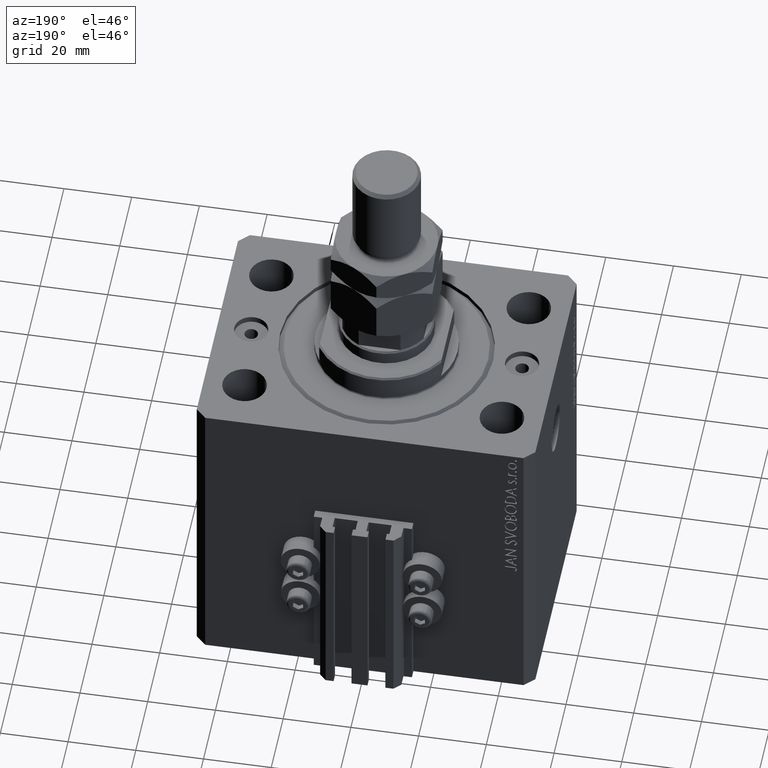
[diagram: clean part render]
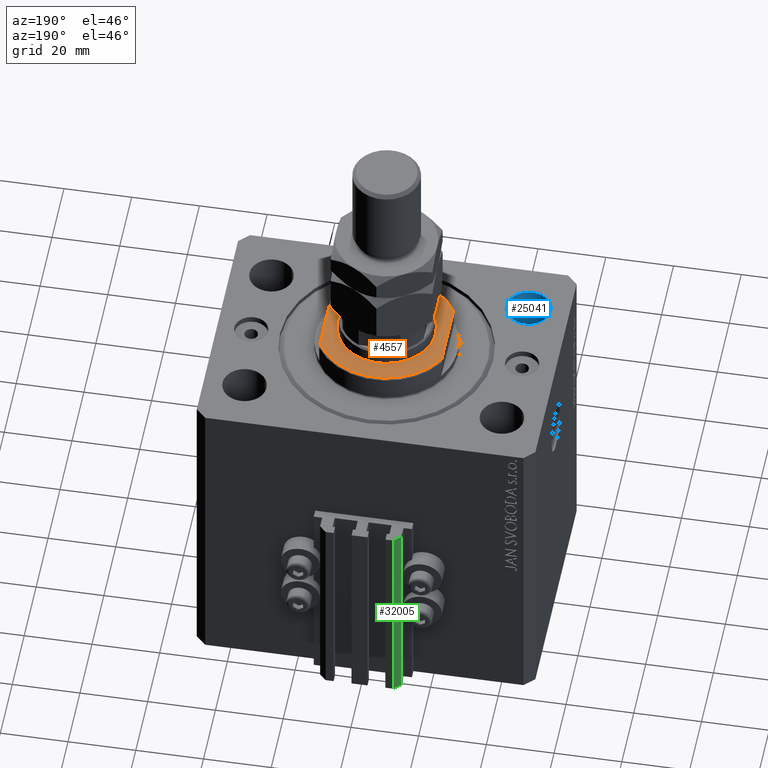
[diagram: same view with three faces highlighted in distinct colors, each labeled with its STEP entity id]
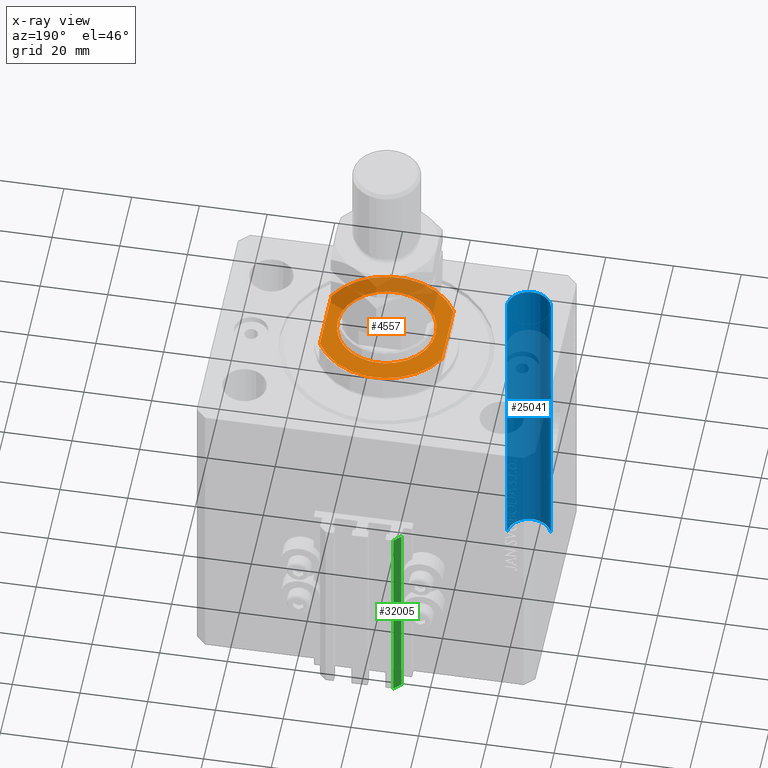
[diagram: x-ray of the same camera — body ghosted, the three highlighted faces saturated]
A machine part, auxiliary view with three faces highlighted in distinct colors.
The next image is the same camera in x-ray (body ghosted, the three faces saturated) — at least one of them is partly hidden behind the body in this view.
Their STEP definitions:

[orange] entity #4557 — the highlighted planar face has unit normal (0, 0, 1).
#2013 = VERTEX_POINT ( 'NONE', #10665 ) ;
#2304 = VERTEX_POINT ( 'NONE', #42613 ) ;
#2636 = DIRECTION ( 'NONE',  ( 0.000000000000000000, 0.000000000000000000, -1.000000000000000000 ) ) ;
#3178 = CARTESIAN_POINT ( 'NONE',  ( 18.00000000000000000, -41.24318125460256113, -8.000000000000000000 ) ) ;
#4535 = DIRECTION ( 'NONE',  ( -0.000000000000000000, -1.000000000000000000, -0.000000000000000000 ) ) ;
#4557 = ADVANCED_FACE ( 'NONE', ( #43066, #9251 ), #17136, .T. ) ;
#4609 = VECTOR ( 'NONE', #4535, 1000.000000000000000 ) ;
#4925 = AXIS2_PLACEMENT_3D ( 'NONE', #42860, #35920, #39153 ) ;
#5816 = VERTEX_POINT ( 'NONE', #6864 ) ;
#6080 = CARTESIAN_POINT ( 'NONE',  ( 0.000000000000000000, 0.000000000000000000, -8.000000000000000000 ) ) ;
#6798 = DIRECTION ( 'NONE',  ( -0.000000000000000000, -0.000000000000000000, 1.000000000000000000 ) ) ;
#6864 = CARTESIAN_POINT ( 'NONE',  ( -14.49999999999998579, 0.000000000000000000, -8.000000000000000000 ) ) ;
#7089 = EDGE_CURVE ( 'NONE', #2304, #5816, #44326, .T. ) ;
#9251 = FACE_OUTER_BOUND ( 'NONE', #27170, .T. ) ;
#9671 = EDGE_CURVE ( 'NONE', #44053, #15915, #18481, .T. ) ;
#10093 = EDGE_CURVE ( 'NONE', #5816, #2304, #36795, .T. ) ;
#10665 = CARTESIAN_POINT ( 'NONE',  ( -18.00000000000000000, -9.810708435174301911, -8.000000000000000000 ) ) ;
#11145 = AXIS2_PLACEMENT_3D ( 'NONE', #32173, #13657, #48210 ) ;
#11586 = AXIS2_PLACEMENT_3D ( 'NONE', #17693, #6798, #26070 ) ;
#12490 = EDGE_CURVE ( 'NONE', #15915, #2013, #16422, .T. ) ;
#12966 = VECTOR ( 'NONE', #36981, 1000.000000000000000 ) ;
#13657 = DIRECTION ( 'NONE',  ( 0.000000000000000000, 0.000000000000000000, -1.000000000000000000 ) ) ;
#13800 = EDGE_CURVE ( 'NONE', #19200, #2013, #18862, .T. ) ;
#15601 = AXIS2_PLACEMENT_3D ( 'NONE', #20935, #24617, #17453 ) ;
#15915 = VERTEX_POINT ( 'NONE', #25052 ) ;
#16422 = CIRCLE ( 'NONE', #15601, 20.50000000000000355 ) ;
#17136 = PLANE ( 'NONE',  #11145 ) ;
#17453 = DIRECTION ( 'NONE',  ( -1.000000000000000000, 0.000000000000000000, 0.000000000000000000 ) ) ;
#17693 = CARTESIAN_POINT ( 'NONE',  ( 0.000000000000000000, 0.000000000000000000, -8.000000000000000000 ) ) ;
#18481 = LINE ( 'NONE', #3178, #12966 ) ;
#18862 = LINE ( 'NONE', #33898, #4609 ) ;
#19200 = VERTEX_POINT ( 'NONE', #40841 ) ;
#20935 = CARTESIAN_POINT ( 'NONE',  ( 0.000000000000000000, 0.000000000000000000, -8.000000000000000000 ) ) ;
#24617 = DIRECTION ( 'NONE',  ( 0.000000000000000000, 0.000000000000000000, -1.000000000000000000 ) ) ;
#25052 = CARTESIAN_POINT ( 'NONE',  ( 18.00000000000000000, -9.810708435174301911, -8.000000000000000000 ) ) ;
#25494 = CIRCLE ( 'NONE', #43601, 20.50000000000000355 ) ;
#26070 = DIRECTION ( 'NONE',  ( -1.000000000000000000, 0.000000000000000000, 0.000000000000000000 ) ) ;
#27170 = EDGE_LOOP ( 'NONE', ( #28463, #38615, #35909, #37666 ) ) ;
#28463 = ORIENTED_EDGE ( 'NONE', *, *, #47324, .T. ) ;
#32173 = CARTESIAN_POINT ( 'NONE',  ( 0.000000000000000000, 0.000000000000000000, -8.000000000000000000 ) ) ;
#32486 = DIRECTION ( 'NONE',  ( -1.000000000000000000, 0.000000000000000000, 0.000000000000000000 ) ) ;
#32816 = ORIENTED_EDGE ( 'NONE', *, *, #10093, .T. ) ;
#33898 = CARTESIAN_POINT ( 'NONE',  ( -18.00000000000000000, -41.24318125460256113, -8.000000000000000000 ) ) ;
#34348 = EDGE_LOOP ( 'NONE', ( #32816, #48787 ) ) ;
#35909 = ORIENTED_EDGE ( 'NONE', *, *, #12490, .T. ) ;
#35920 = DIRECTION ( 'NONE',  ( -0.000000000000000000, -0.000000000000000000, 1.000000000000000000 ) ) ;
#36795 = CIRCLE ( 'NONE', #11586, 14.49999999999998579 ) ;
#36981 = DIRECTION ( 'NONE',  ( 0.000000000000000000, -1.000000000000000000, -0.000000000000000000 ) ) ;
#37666 = ORIENTED_EDGE ( 'NONE', *, *, #13800, .F. ) ;
#38615 = ORIENTED_EDGE ( 'NONE', *, *, #9671, .T. ) ;
#39153 = DIRECTION ( 'NONE',  ( -1.000000000000000000, 0.000000000000000000, 0.000000000000000000 ) ) ;
#40841 = CARTESIAN_POINT ( 'NONE',  ( -18.00000000000000000, 9.810708435174301911, -8.000000000000000000 ) ) ;
#42613 = CARTESIAN_POINT ( 'NONE',  ( 14.49999999999998579, 1.775737858763660437E-15, -8.000000000000000000 ) ) ;
#42860 = CARTESIAN_POINT ( 'NONE',  ( 0.000000000000000000, 0.000000000000000000, -8.000000000000000000 ) ) ;
#43066 = FACE_BOUND ( 'NONE', #34348, .T. ) ;
#43601 = AXIS2_PLACEMENT_3D ( 'NONE', #6080, #2636, #32486 ) ;
#44053 = VERTEX_POINT ( 'NONE', #45860 ) ;
#44326 = CIRCLE ( 'NONE', #4925, 14.49999999999998579 ) ;
#45860 = CARTESIAN_POINT ( 'NONE',  ( 18.00000000000000000, 9.810708435174301911, -8.000000000000000000 ) ) ;
#47324 = EDGE_CURVE ( 'NONE', #19200, #44053, #25494, .T. ) ;
#48210 = DIRECTION ( 'NONE',  ( -1.000000000000000000, 0.000000000000000000, -0.000000000000000000 ) ) ;
#48787 = ORIENTED_EDGE ( 'NONE', *, *, #7089, .T. ) ;

[blue] entity #25041 — the highlighted cylindrical surface (edge-blend (fillet) strip) has radius 6.5 mm, axis along (0, 0, 1).
#4415 = EDGE_LOOP ( 'NONE', ( #40222, #41024, #26441, #45255 ) ) ;
#5577 = CARTESIAN_POINT ( 'NONE',  ( -44.49999999999999289, -22.50000000000000000, 0.000000000000000000 ) ) ;
#6842 = DIRECTION ( 'NONE',  ( 1.000000000000000000, 0.000000000000000000, 0.000000000000000000 ) ) ;
#7041 = DIRECTION ( 'NONE',  ( 1.000000000000000000, 0.000000000000000000, 0.000000000000000000 ) ) ;
#8068 = VERTEX_POINT ( 'NONE', #15473 ) ;
#8439 = DIRECTION ( 'NONE',  ( 1.000000000000000000, 0.000000000000000000, 0.000000000000000000 ) ) ;
#10016 = EDGE_CURVE ( 'NONE', #38335, #12976, #39772, .T. ) ;
#10568 = CARTESIAN_POINT ( 'NONE',  ( -37.99999999999999289, -22.50000000000000000, -113.3847763108502278 ) ) ;
#12976 = VERTEX_POINT ( 'NONE', #32323 ) ;
#13101 = LINE ( 'NONE', #21474, #48804 ) ;
#13815 = DIRECTION ( 'NONE',  ( -0.000000000000000000, -0.000000000000000000, 1.000000000000000000 ) ) ;
#15473 = CARTESIAN_POINT ( 'NONE',  ( -44.49999999999999289, -22.50000000000000000, -95.00000000000000000 ) ) ;
#18495 = AXIS2_PLACEMENT_3D ( 'NONE', #25331, #44336, #7041 ) ;
#18992 = EDGE_CURVE ( 'NONE', #23668, #12976, #13101, .T. ) ;
#19455 = AXIS2_PLACEMENT_3D ( 'NONE', #35329, #31636, #8439 ) ;
#21176 = EDGE_CURVE ( 'NONE', #8068, #38335, #39708, .T. ) ;
#21474 = CARTESIAN_POINT ( 'NONE',  ( -31.49999999999999289, -22.50000000000000000, -113.3847763108502278 ) ) ;
#22660 = DIRECTION ( 'NONE',  ( -0.000000000000000000, -0.000000000000000000, 1.000000000000000000 ) ) ;
#23668 = VERTEX_POINT ( 'NONE', #26700 ) ;
#25041 = ADVANCED_FACE ( 'NONE', ( #48582 ), #36728, .F. ) ;
#25331 = CARTESIAN_POINT ( 'NONE',  ( -37.99999999999999289, -22.50000000000000000, 0.000000000000000000 ) ) ;
#26441 = ORIENTED_EDGE ( 'NONE', *, *, #10016, .T. ) ;
#26700 = CARTESIAN_POINT ( 'NONE',  ( -31.49999999999999289, -22.50000000000000000, -95.00000000000000000 ) ) ;
#31636 = DIRECTION ( 'NONE',  ( -0.000000000000000000, -0.000000000000000000, -1.000000000000000000 ) ) ;
#32323 = CARTESIAN_POINT ( 'NONE',  ( -31.49999999999999289, -22.50000000000000000, 0.000000000000000000 ) ) ;
#33014 = CARTESIAN_POINT ( 'NONE',  ( -44.49999999999999289, -22.50000000000000000, -113.3847763108502278 ) ) ;
#33102 = VECTOR ( 'NONE', #36235, 1000.000000000000000 ) ;
#33982 = AXIS2_PLACEMENT_3D ( 'NONE', #10568, #22660, #6842 ) ;
#35329 = CARTESIAN_POINT ( 'NONE',  ( -37.99999999999999289, -22.50000000000000000, -95.00000000000000000 ) ) ;
#36235 = DIRECTION ( 'NONE',  ( -0.000000000000000000, -0.000000000000000000, 1.000000000000000000 ) ) ;
#36728 = CYLINDRICAL_SURFACE ( 'NONE', #33982, 6.499999999999999112 ) ;
#38327 = CIRCLE ( 'NONE', #19455, 6.499999999999999112 ) ;
#38335 = VERTEX_POINT ( 'NONE', #5577 ) ;
#39708 = LINE ( 'NONE', #33014, #33102 ) ;
#39772 = CIRCLE ( 'NONE', #18495, 6.499999999999999112 ) ;
#40070 = EDGE_CURVE ( 'NONE', #23668, #8068, #38327, .T. ) ;
#40222 = ORIENTED_EDGE ( 'NONE', *, *, #40070, .T. ) ;
#41024 = ORIENTED_EDGE ( 'NONE', *, *, #21176, .T. ) ;
#44336 = DIRECTION ( 'NONE',  ( 0.000000000000000000, 0.000000000000000000, 1.000000000000000000 ) ) ;
#45255 = ORIENTED_EDGE ( 'NONE', *, *, #18992, .F. ) ;
#48582 = FACE_OUTER_BOUND ( 'NONE', #4415, .T. ) ;
#48804 = VECTOR ( 'NONE', #13815, 1000.000000000000000 ) ;

[green] entity #32005 — the highlighted planar face has unit normal (-0.7071, 0.7071, 0).
#1050 = ORIENTED_EDGE ( 'NONE', *, *, #23212, .F. ) ;
#1212 = DIRECTION ( 'NONE',  ( -0.7071067811865460184, -0.7071067811865490160, 0.000000000000000000 ) ) ;
#2142 = CARTESIAN_POINT ( 'NONE',  ( -10.00000000000000000, 45.49999999999999289, -95.00000000000000000 ) ) ;
#2210 = CARTESIAN_POINT ( 'NONE',  ( -12.00000000000000000, 43.49999999999998579, -95.00000000000000000 ) ) ;
#4710 = EDGE_CURVE ( 'NONE', #29989, #31423, #41789, .T. ) ;
#6604 = EDGE_LOOP ( 'NONE', ( #1050, #38133, #23018, #36977 ) ) ;
#6843 = CARTESIAN_POINT ( 'NONE',  ( -10.00000000000000000, 45.49999999999999289, -33.00000000000000000 ) ) ;
#8472 = CARTESIAN_POINT ( 'NONE',  ( -12.00000000000000000, 43.49999999999998579, -95.00000000000000000 ) ) ;
#8868 = VERTEX_POINT ( 'NONE', #6843 ) ;
#9859 = LINE ( 'NONE', #2210, #13195 ) ;
#10931 = DIRECTION ( 'NONE',  ( -0.7071067811865460184, -0.7071067811865490160, 0.000000000000000000 ) ) ;
#11396 = EDGE_CURVE ( 'NONE', #31423, #26190, #9859, .T. ) ;
#12040 = AXIS2_PLACEMENT_3D ( 'NONE', #47986, #47255, #24796 ) ;
#13195 = VECTOR ( 'NONE', #43425, 1000.000000000000000 ) ;
#19109 = CARTESIAN_POINT ( 'NONE',  ( -10.00000000000000000, 45.49999999999999289, -95.00000000000000000 ) ) ;
#23018 = ORIENTED_EDGE ( 'NONE', *, *, #4710, .T. ) ;
#23212 = EDGE_CURVE ( 'NONE', #8868, #26190, #42918, .T. ) ;
#24796 = DIRECTION ( 'NONE',  ( -0.7071067811865460184, -0.7071067811865489050, 0.000000000000000000 ) ) ;
#25285 = VECTOR ( 'NONE', #1212, 1000.000000000000227 ) ;
#26190 = VERTEX_POINT ( 'NONE', #31479 ) ;
#26236 = CARTESIAN_POINT ( 'NONE',  ( -10.00000000000000000, 45.49999999999999289, -95.00000000000000000 ) ) ;
#29960 = DIRECTION ( 'NONE',  ( 0.000000000000000000, 0.000000000000000000, 1.000000000000000000 ) ) ;
#29989 = VERTEX_POINT ( 'NONE', #2142 ) ;
#31423 = VERTEX_POINT ( 'NONE', #8472 ) ;
#31479 = CARTESIAN_POINT ( 'NONE',  ( -12.00000000000000000, 43.49999999999998579, -33.00000000000000000 ) ) ;
#32005 = ADVANCED_FACE ( 'NONE', ( #36139 ), #32683, .T. ) ;
#32106 = EDGE_CURVE ( 'NONE', #29989, #8868, #44525, .T. ) ;
#32529 = VECTOR ( 'NONE', #29960, 1000.000000000000000 ) ;
#32683 = PLANE ( 'NONE',  #12040 ) ;
#35005 = CARTESIAN_POINT ( 'NONE',  ( -10.00000000000000000, 45.49999999999999289, -33.00000000000000000 ) ) ;
#36139 = FACE_OUTER_BOUND ( 'NONE', #6604, .T. ) ;
#36977 = ORIENTED_EDGE ( 'NONE', *, *, #11396, .T. ) ;
#37956 = VECTOR ( 'NONE', #10931, 1000.000000000000227 ) ;
#38133 = ORIENTED_EDGE ( 'NONE', *, *, #32106, .F. ) ;
#41789 = LINE ( 'NONE', #26236, #37956 ) ;
#42918 = LINE ( 'NONE', #35005, #25285 ) ;
#43425 = DIRECTION ( 'NONE',  ( 0.000000000000000000, 0.000000000000000000, 1.000000000000000000 ) ) ;
#44525 = LINE ( 'NONE', #19109, #32529 ) ;
#47255 = DIRECTION ( 'NONE',  ( -0.7071067811865490160, 0.7071067811865461294, 0.000000000000000000 ) ) ;
#47986 = CARTESIAN_POINT ( 'NONE',  ( -10.00000000000000000, 45.49999999999999289, -95.00000000000000000 ) ) ;